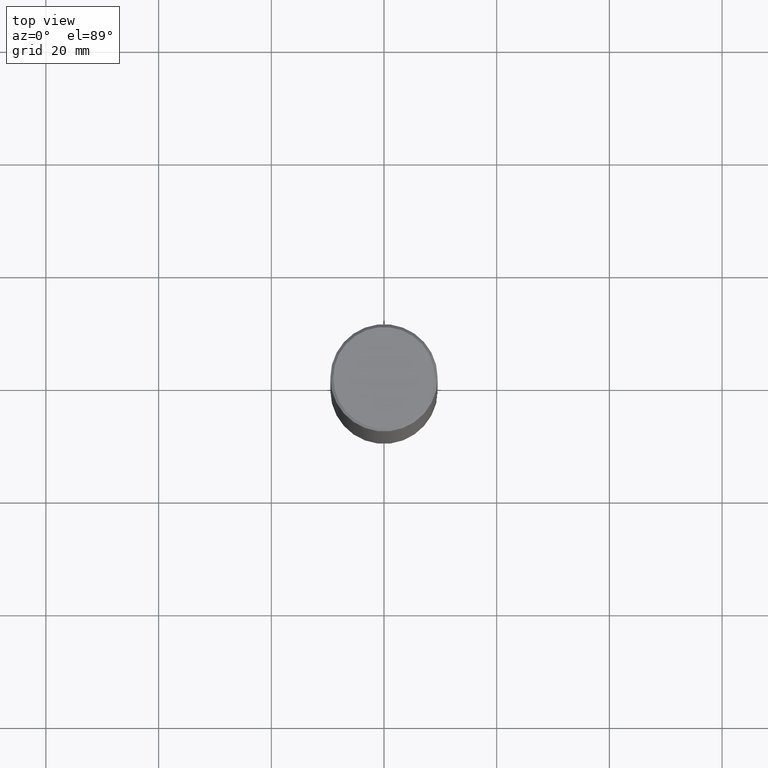
[diagram: clean part render]
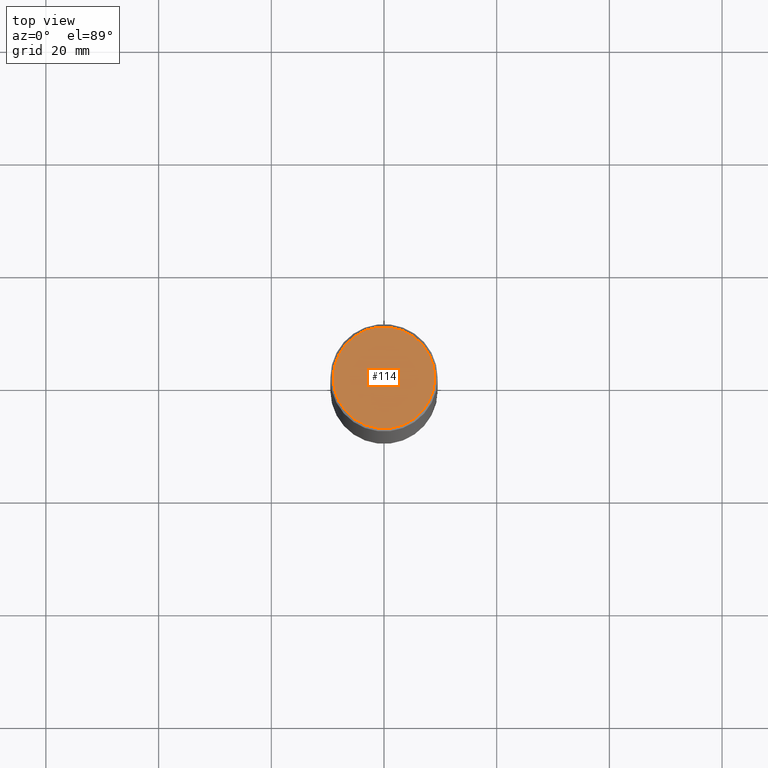
[diagram: same view with one face highlighted and labeled with its STEP entity id]
A machine part, top view. The second image highlights one B-rep face of the part: STEP entity #114.
In plain terms, the highlighted planar face has unit normal (0, -0, -1).
Its self-contained STEP definition (entity closure, byte-faithful):
#10 = DIRECTION ( 'NONE',  ( -2.445468806185136597E-29, 3.491481338843145583E-15, 1.000000000000000000 ) ) ;
#35 = EDGE_LOOP ( 'NONE', ( #168, #281 ) ) ;
#51 = AXIS2_PLACEMENT_3D ( 'NONE', #263, #10, #108 ) ;
#87 = CARTESIAN_POINT ( 'NONE',  ( 0.3549999999999996492, -2.538996582575037893E-15, 4.268512490117958041E-18 ) ) ;
#91 = DIRECTION ( 'NONE',  ( -2.445468806185136597E-29, 3.491481338843145583E-15, 1.000000000000000000 ) ) ;
#96 = VERTEX_POINT ( 'NONE', #87 ) ;
#97 = DIRECTION ( 'NONE',  ( -1.000000000000000000, 6.982962677686265922E-15, -4.876176775795935793E-29 ) ) ;
#108 = DIRECTION ( 'NONE',  ( 1.000000000000000000, -6.982962677686265922E-15, 4.876231632511992667E-29 ) ) ;
#110 = AXIS2_PLACEMENT_3D ( 'NONE', #147, #91, #174 ) ;
#114 = ADVANCED_FACE ( 'NONE', ( #347 ), #358, .F. ) ;
#147 = CARTESIAN_POINT ( 'NONE',  ( -1.043851414335219820E-46, 1.490343170380447200E-32, 4.268512490100411279E-18 ) ) ;
#151 = VERTEX_POINT ( 'NONE', #341 ) ;
#152 = CARTESIAN_POINT ( 'NONE',  ( 2.478951750578621842E-15, 0.3549999999999996492, -1.237341619044265047E-15 ) ) ;
#158 = AXIS2_PLACEMENT_3D ( 'NONE', #152, #266, #97 ) ;
#168 = ORIENTED_EDGE ( 'NONE', *, *, #282, .T. ) ;
#174 = DIRECTION ( 'NONE',  ( 1.000000000000000000, -6.982962677686265922E-15, 4.876231632511992667E-29 ) ) ;
#263 = CARTESIAN_POINT ( 'NONE',  ( -1.043851414335219820E-46, 1.490343170380447200E-32, 4.268512490100411279E-18 ) ) ;
#266 = DIRECTION ( 'NONE',  ( 2.438088387897960049E-29, -3.491481338843145188E-15, -1.000000000000000000 ) ) ;
#281 = ORIENTED_EDGE ( 'NONE', *, *, #321, .T. ) ;
#282 = EDGE_CURVE ( 'NONE', #151, #96, #329, .T. ) ;
#302 = CIRCLE ( 'NONE', #51, 0.3549999999999996492 ) ;
#321 = EDGE_CURVE ( 'NONE', #96, #151, #302, .T. ) ;
#329 = CIRCLE ( 'NONE', #110, 0.3549999999999996492 ) ;
#341 = CARTESIAN_POINT ( 'NONE',  ( -0.3549999999999996492, 2.513866563967052703E-15, 4.268512490082953109E-18 ) ) ;
#347 = FACE_OUTER_BOUND ( 'NONE', #35, .T. ) ;
#358 = PLANE ( 'NONE',  #158 ) ;